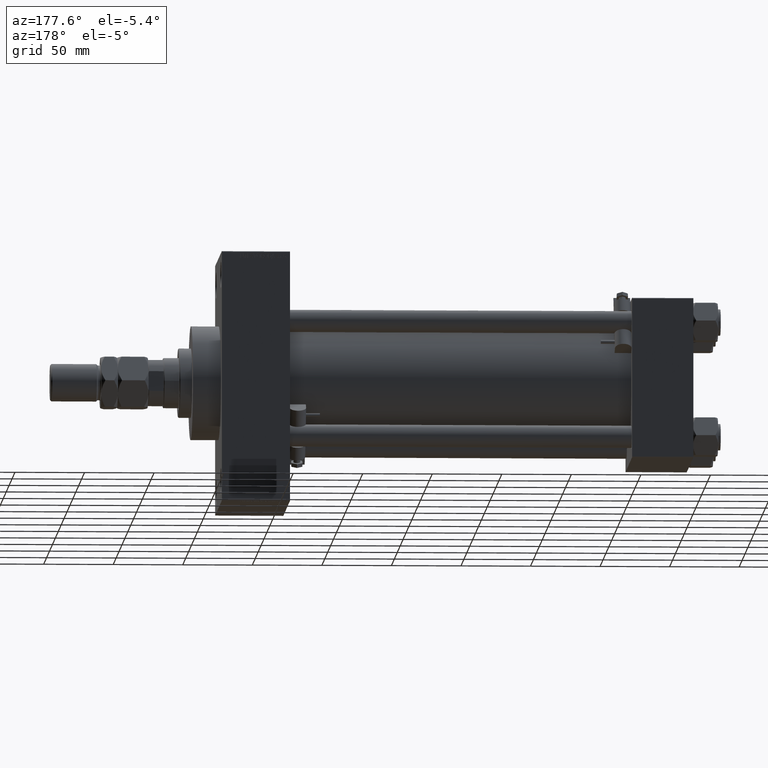
[diagram: clean part render]
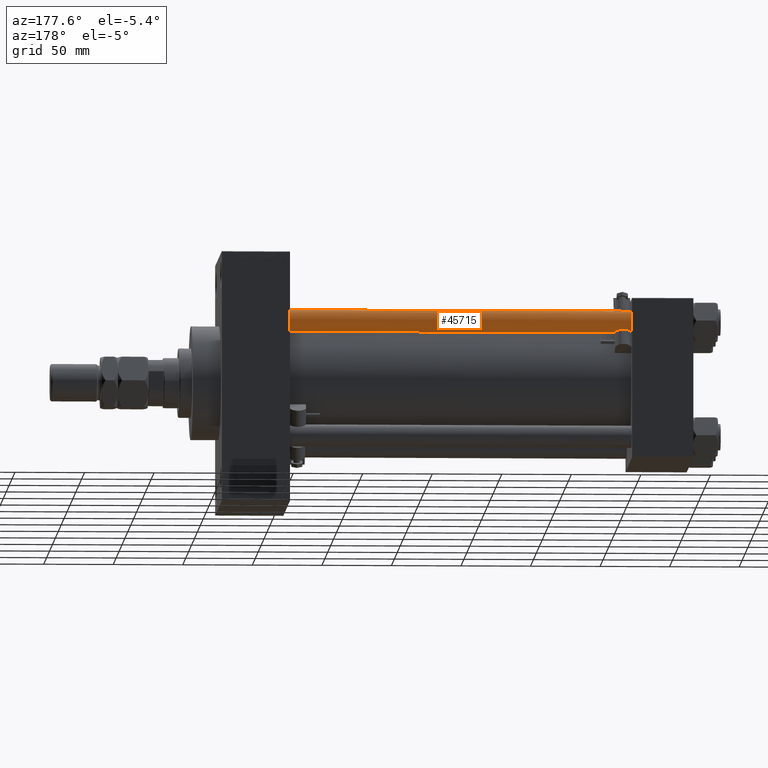
[diagram: same view with one face highlighted and labeled with its STEP entity id]
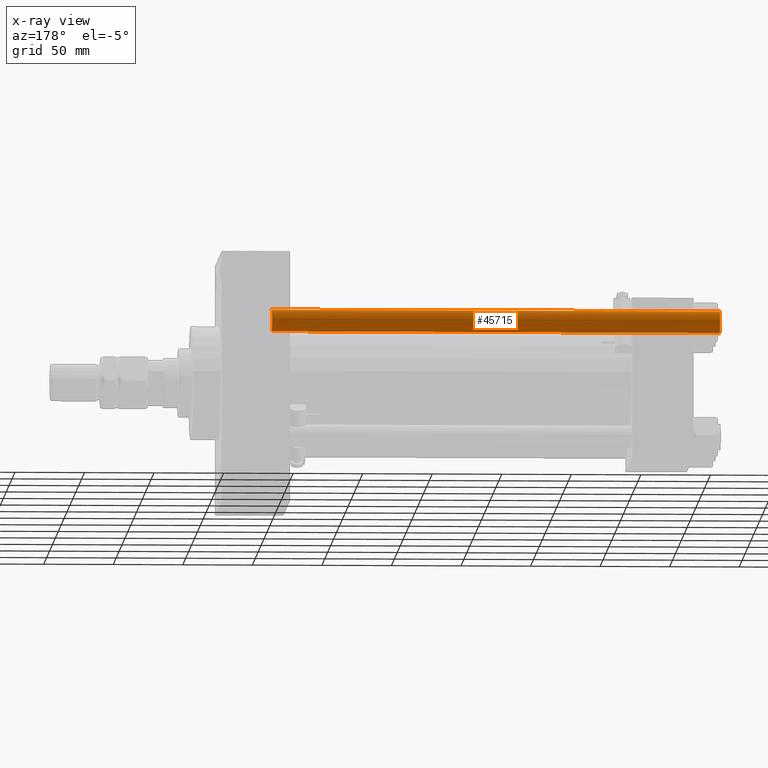
[diagram: x-ray of the same camera — body ghosted, the highlighted face saturated]
A machine part, auxiliary view. The second image highlights one B-rep face of the part: STEP entity #45715.
The next image is the same camera in x-ray: the body ghosted, the highlighted face saturated — about 0% of this face is hidden behind the body in this view.
In plain terms, the highlighted cylindrical surface (edge-blend (fillet) strip) has radius 8 mm, axis along (-1, -0, 0).
Its self-contained STEP definition (entity closure, byte-faithful):
#6562 = DIRECTION ( 'NONE',  ( -0.000000000000000000, -0.000000000000000000, 1.000000000000000000 ) ) ;
#7308 = EDGE_CURVE ( 'NONE', #24822, #18714, #36906, .T. ) ;
#7449 = EDGE_CURVE ( 'NONE', #27573, #11010, #13305, .T. ) ;
#8627 = DIRECTION ( 'NONE',  ( -0.000000000000000000, -0.000000000000000000, -1.000000000000000000 ) ) ;
#11010 = VERTEX_POINT ( 'NONE', #19574 ) ;
#12455 = LINE ( 'NONE', #13465, #49331 ) ;
#12993 = AXIS2_PLACEMENT_3D ( 'NONE', #29831, #37475, #21931 ) ;
#13305 = CIRCLE ( 'NONE', #27953, 8.000000000000000000 ) ;
#13465 = CARTESIAN_POINT ( 'NONE',  ( -8.000000000000000000, 0.000000000000000000, 323.0000000000000000 ) ) ;
#17374 = EDGE_CURVE ( 'NONE', #27573, #18714, #12455, .T. ) ;
#18196 = EDGE_LOOP ( 'NONE', ( #47270, #18986, #43328, #41076 ) ) ;
#18714 = VERTEX_POINT ( 'NONE', #20802 ) ;
#18986 = ORIENTED_EDGE ( 'NONE', *, *, #41207, .T. ) ;
#19574 = CARTESIAN_POINT ( 'NONE',  ( 8.000000000000000000, 9.797174393178825657E-16, 322.5000000000000000 ) ) ;
#20802 = CARTESIAN_POINT ( 'NONE',  ( -8.000000000000000000, 0.000000000000000000, 0.5000000000000004441 ) ) ;
#21931 = DIRECTION ( 'NONE',  ( -1.000000000000000000, 0.000000000000000000, 0.000000000000000000 ) ) ;
#24822 = VERTEX_POINT ( 'NONE', #38171 ) ;
#25430 = DIRECTION ( 'NONE',  ( 1.000000000000000000, 0.000000000000000000, 0.000000000000000000 ) ) ;
#27573 = VERTEX_POINT ( 'NONE', #45744 ) ;
#27953 = AXIS2_PLACEMENT_3D ( 'NONE', #32248, #32763, #43222 ) ;
#29831 = CARTESIAN_POINT ( 'NONE',  ( 0.000000000000000000, 0.000000000000000000, 323.0000000000000000 ) ) ;
#30701 = CARTESIAN_POINT ( 'NONE',  ( 8.000000000000000000, 9.797174393178825657E-16, 323.0000000000000000 ) ) ;
#32248 = CARTESIAN_POINT ( 'NONE',  ( 0.000000000000000000, 0.000000000000000000, 322.5000000000000000 ) ) ;
#32763 = DIRECTION ( 'NONE',  ( 0.000000000000000000, 0.000000000000000000, -1.000000000000000000 ) ) ;
#33908 = CYLINDRICAL_SURFACE ( 'NONE', #12993, 8.000000000000000000 ) ;
#34522 = LINE ( 'NONE', #30701, #34933 ) ;
#34933 = VECTOR ( 'NONE', #37345, 1000.000000000000000 ) ;
#36906 = CIRCLE ( 'NONE', #49924, 8.000000000000000000 ) ;
#37345 = DIRECTION ( 'NONE',  ( -0.000000000000000000, -0.000000000000000000, -1.000000000000000000 ) ) ;
#37475 = DIRECTION ( 'NONE',  ( -0.000000000000000000, -0.000000000000000000, -1.000000000000000000 ) ) ;
#38171 = CARTESIAN_POINT ( 'NONE',  ( 8.000000000000000000, 9.797174393178825657E-16, 0.5000000000000004441 ) ) ;
#41076 = ORIENTED_EDGE ( 'NONE', *, *, #17374, .F. ) ;
#41207 = EDGE_CURVE ( 'NONE', #11010, #24822, #34522, .T. ) ;
#41224 = CARTESIAN_POINT ( 'NONE',  ( 0.000000000000000000, 0.000000000000000000, 0.5000000000000004441 ) ) ;
#43222 = DIRECTION ( 'NONE',  ( 1.000000000000000000, 0.000000000000000000, 0.000000000000000000 ) ) ;
#43328 = ORIENTED_EDGE ( 'NONE', *, *, #7308, .T. ) ;
#45368 = FACE_OUTER_BOUND ( 'NONE', #18196, .T. ) ;
#45715 = ADVANCED_FACE ( 'NONE', ( #45368 ), #33908, .T. ) ;
#45744 = CARTESIAN_POINT ( 'NONE',  ( -8.000000000000000000, 0.000000000000000000, 322.5000000000000000 ) ) ;
#47270 = ORIENTED_EDGE ( 'NONE', *, *, #7449, .T. ) ;
#49331 = VECTOR ( 'NONE', #8627, 1000.000000000000000 ) ;
#49924 = AXIS2_PLACEMENT_3D ( 'NONE', #41224, #6562, #25430 ) ;